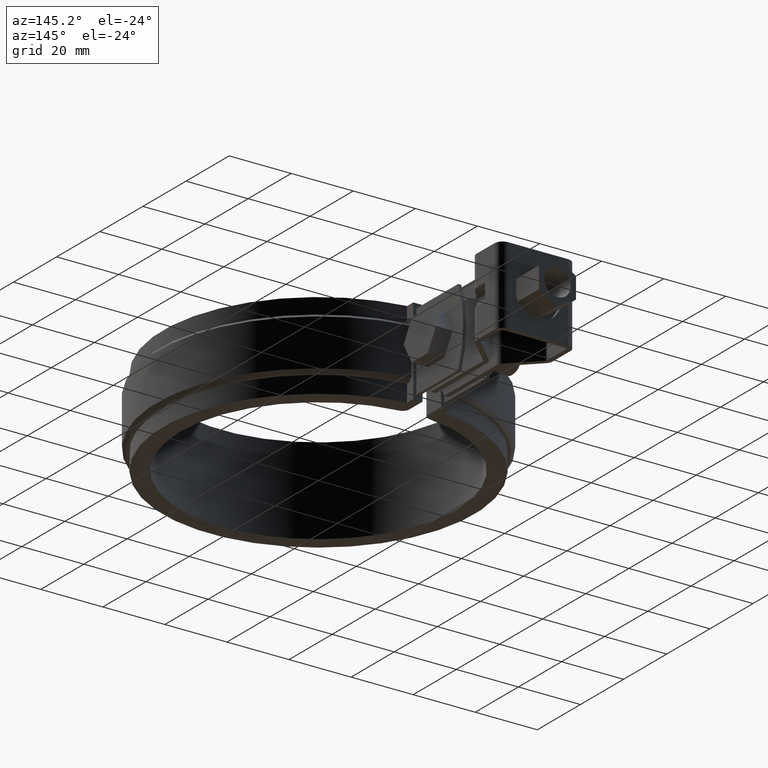
[diagram: clean part render]
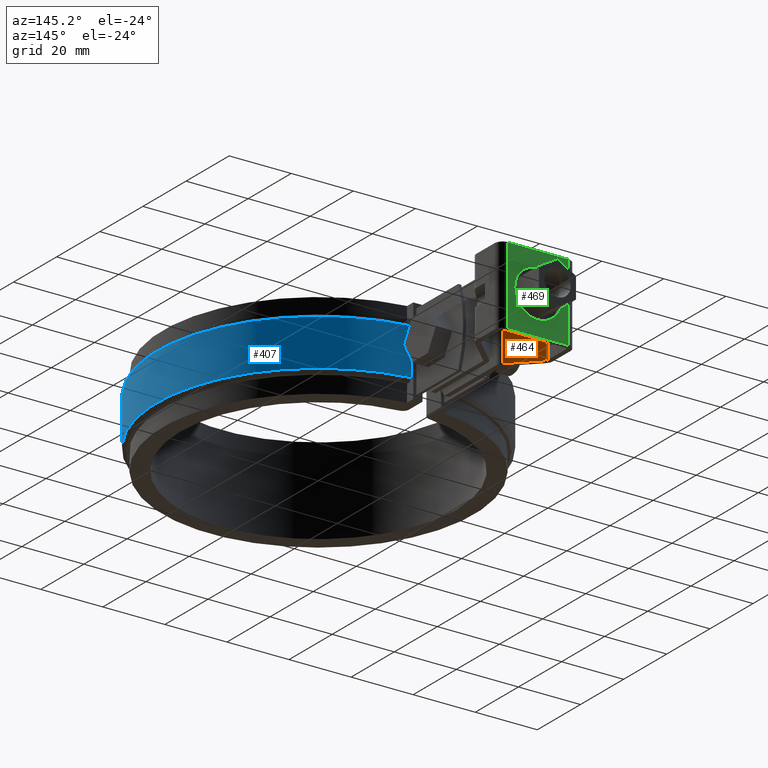
[diagram: same view with three faces highlighted in distinct colors, each labeled with its STEP entity id]
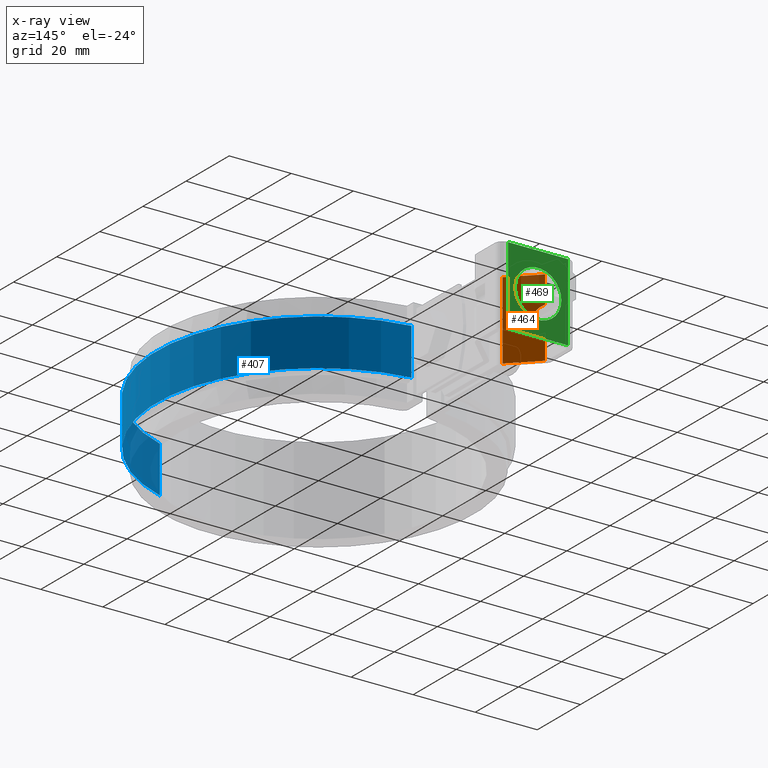
[diagram: x-ray of the same camera — body ghosted, the three highlighted faces saturated]
A machine part, auxiliary view with three faces highlighted in distinct colors.
The next image is the same camera in x-ray (body ghosted, the three faces saturated) — at least one of them is partly hidden behind the body in this view.
Their STEP definitions:

[orange] entity #464 — the highlighted planar face has unit normal (0.6983, 0.7158, -0).
#464 = ADVANCED_FACE( '', ( #841 ), #842, .T. );
#841 = FACE_OUTER_BOUND( '', #1857, .T. );
#842 = PLANE( '', #1858 );
#1857 = EDGE_LOOP( '', ( #3850, #3851, #3852, #3853, #3854, #3855 ) );
#1858 = AXIS2_PLACEMENT_3D( '', #3856, #3857, #3858 );
#3850 = ORIENTED_EDGE( '', *, *, #4674, .T. );
#3851 = ORIENTED_EDGE( '', *, *, #4749, .T. );
#3852 = ORIENTED_EDGE( '', *, *, #4783, .F. );
#3853 = ORIENTED_EDGE( '', *, *, #4780, .F. );
#3854 = ORIENTED_EDGE( '', *, *, #4763, .F. );
#3855 = ORIENTED_EDGE( '', *, *, #4784, .F. );
#3856 = CARTESIAN_POINT( '', ( -10.3483238356395, 90.1764119053686, 12.4999999939064 ) );
#3857 = DIRECTION( '', ( 0.698323835529679, 0.715781964519306, -3.34333070225550E-011 ) );
#3858 = DIRECTION( '', ( -0.715781964519306, 0.698323835529679, -3.32940420763790E-011 ) );
#4674 = EDGE_CURVE( '', #5480, #5478, #5481, .T. );
#4749 = EDGE_CURVE( '', #5478, #5609, #5612, .F. );
#4763 = EDGE_CURVE( '', #5634, #5625, #5636, .T. );
#4780 = EDGE_CURVE( '', #5625, #5663, #5664, .T. );
#4783 = EDGE_CURVE( '', #5663, #5609, #5668, .T. );
#4784 = EDGE_CURVE( '', #5480, #5634, #5669, .T. );
#5478 = VERTEX_POINT( '', #8319 );
#5480 = VERTEX_POINT( '', #8321 );
#5481 = LINE( '', #8322, #8323 );
#5609 = VERTEX_POINT( '', #8521 );
#5612 = LINE( '', #8524, #8525 );
#5625 = VERTEX_POINT( '', #8542 );
#5634 = VERTEX_POINT( '', #8558 );
#5636 = ELLIPSE( '', #8565, 5.93756228945901, 4.24999999999996 );
#5663 = VERTEX_POINT( '', #8616 );
#5664 = LINE( '', #8617, #8618 );
#5668 = LINE( '', #8623, #8624 );
#5669 = LINE( '', #8625, #8626 );
#8319 = CARTESIAN_POINT( '', ( -2.18435802772052, 82.2115675830508, 12.4999999942862 ) );
#8321 = CARTESIAN_POINT( '', ( -10.3483238356395, 90.1764119053686, 12.4999999939064 ) );
#8322 = CARTESIAN_POINT( '', ( -10.3483238356395, 90.1764119053686, 12.4999999939064 ) );
#8323 = VECTOR( '', #9381, 1000.00000000000 );
#8521 = CARTESIAN_POINT( '', ( -2.18435802770842, 82.2115675818713, -12.5000000057138 ) );
#8524 = CARTESIAN_POINT( '', ( -2.18435802772051, 82.2115675830508, 12.4999999942862 ) );
#8525 = VECTOR( '', #9504, 1000.00000000000 );
#8542 = CARTESIAN_POINT( '', ( -10.3483238356316, 90.1764119045996, -3.80080620550553 ) );
#8558 = CARTESIAN_POINT( '', ( -10.3483238356353, 90.1764119049582, 3.80080619331842 ) );
#8565 = AXIS2_PLACEMENT_3D( '', #9526, #9527, #9528 );
#8616 = CARTESIAN_POINT( '', ( -10.3483238356274, 90.1764119041891, -12.5000000060936 ) );
#8617 = CARTESIAN_POINT( '', ( -10.3483238356395, 90.1764119053686, 12.4999999939064 ) );
#8618 = VECTOR( '', #9555, 1000.00000000000 );
#8623 = CARTESIAN_POINT( '', ( -10.3483238356274, 90.1764119041891, -12.5000000060936 ) );
#8624 = VECTOR( '', #9560, 1000.00000000000 );
#8625 = CARTESIAN_POINT( '', ( -10.3483238356395, 90.1764119053686, 12.4999999939064 ) );
#8626 = VECTOR( '', #9561, 1000.00000000000 );
#9381 = DIRECTION( '', ( 0.715781964519306, -0.698323835529679, 3.32940420763790E-011 ) );
#9504 = DIRECTION( '', ( -4.83938419469381E-013, 4.71809216071525E-011, 1.00000000000000 ) );
#9526 = CARTESIAN_POINT( '', ( -12.2500000001050, 92.0317056379773, -6.18201323465684E-009 ) );
#9527 = DIRECTION( '', ( 0.698323835529679, 0.715781964519306, -3.34333070225550E-011 ) );
#9528 = DIRECTION( '', ( -0.715781964519306, 0.698323835529679, -3.32940420763790E-011 ) );
#9555 = DIRECTION( '', ( 4.83999649787072E-013, -4.71809813440451E-011, -1.00000000000000 ) );
#9560 = DIRECTION( '', ( 0.715781964519306, -0.698323835529679, 3.32940420763790E-011 ) );
#9561 = DIRECTION( '', ( 4.83999649787072E-013, -4.71809813440451E-011, -1.00000000000000 ) );

[blue] entity #407 — the highlighted cylindrical surface (partial cylindrical patch) has radius 52.05 mm, axis along (0, 0, -1).
#407 = ADVANCED_FACE( '', ( #722 ), #723, .T. );
#722 = FACE_OUTER_BOUND( '', #1734, .T. );
#723 = CYLINDRICAL_SURFACE( '', #1735, 52.0500000000000 );
#1734 = EDGE_LOOP( '', ( #3345, #3346, #3347, #3348 ) );
#1735 = AXIS2_PLACEMENT_3D( '', #3349, #3350, #3351 );
#3345 = ORIENTED_EDGE( '', *, *, #4618, .F. );
#3346 = ORIENTED_EDGE( '', *, *, #4575, .T. );
#3347 = ORIENTED_EDGE( '', *, *, #4647, .F. );
#3348 = ORIENTED_EDGE( '', *, *, #4652, .T. );
#3349 = CARTESIAN_POINT( '', ( 0.000000000000000, -1.38777878078145E-014, -8.50000000000000 ) );
#3350 = DIRECTION( '', ( 0.000000000000000, 0.000000000000000, -1.00000000000000 ) );
#3351 = DIRECTION( '', ( 0.0960614793467818, 0.995375402642494, 0.000000000000000 ) );
#4575 = EDGE_CURVE( '', #5322, #5326, #5328, .F. );
#4618 = EDGE_CURVE( '', #5322, #5402, #5403, .F. );
#4647 = EDGE_CURVE( '', #5447, #5326, #5448, .T. );
#4652 = EDGE_CURVE( '', #5447, #5402, #5454, .T. );
#5322 = VERTEX_POINT( '', #8084 );
#5326 = VERTEX_POINT( '', #8091 );
#5328 = CIRCLE( '', #8094, 52.0500000000000 );
#5402 = VERTEX_POINT( '', #8197 );
#5403 = LINE( '', #8198, #8199 );
#5447 = VERTEX_POINT( '', #8267 );
#5448 = LINE( '', #8268, #8269 );
#5454 = CIRCLE( '', #8276, 52.0500000000000 );
#8084 = CARTESIAN_POINT( '', ( 6.00000000000000, 51.7030221553828, 7.50000000000001 ) );
#8091 = CARTESIAN_POINT( '', ( 16.8700026854753, -49.2402834008097, 7.50000000000001 ) );
#8094 = AXIS2_PLACEMENT_3D( '', #9225, #9226, #9227 );
#8197 = CARTESIAN_POINT( '', ( 6.00000000000000, 51.7030221553828, -7.50000000000000 ) );
#8198 = CARTESIAN_POINT( '', ( 6.00000000000000, 51.7030221553828, -8.50000000000000 ) );
#8199 = VECTOR( '', #9296, 1000.00000000000 );
#8267 = CARTESIAN_POINT( '', ( 16.8700026854753, -49.2402834008097, -7.50000000000000 ) );
#8268 = CARTESIAN_POINT( '', ( 16.8700026854753, -49.2402834008097, -8.50000000000000 ) );
#8269 = VECTOR( '', #9342, 1000.00000000000 );
#8276 = AXIS2_PLACEMENT_3D( '', #9353, #9354, #9355 );
#9225 = CARTESIAN_POINT( '', ( 0.000000000000000, -1.38777878078145E-014, 7.50000000000000 ) );
#9226 = DIRECTION( '', ( 0.000000000000000, 0.000000000000000, 1.00000000000000 ) );
#9227 = DIRECTION( '', ( 1.00000000000000, 0.000000000000000, 0.000000000000000 ) );
#9296 = DIRECTION( '', ( 0.000000000000000, 0.000000000000000, 1.00000000000000 ) );
#9342 = DIRECTION( '', ( 0.000000000000000, 0.000000000000000, 1.00000000000000 ) );
#9353 = CARTESIAN_POINT( '', ( 0.000000000000000, -1.38777878078145E-014, -7.50000000000000 ) );
#9354 = DIRECTION( '', ( 0.000000000000000, 0.000000000000000, 1.00000000000000 ) );
#9355 = DIRECTION( '', ( 1.00000000000000, 0.000000000000000, 0.000000000000000 ) );

[green] entity #469 — the highlighted planar face has unit normal (-0, 1, -0).
#469 = ADVANCED_FACE( '', ( #852, #853 ), #854, .T. );
#852 = FACE_BOUND( '', #1868, .T. );
#853 = FACE_OUTER_BOUND( '', #1869, .T. );
#854 = PLANE( '', #1870 );
#1868 = EDGE_LOOP( '', ( #3894 ) );
#1869 = EDGE_LOOP( '', ( #3895, #3896, #3897, #3898 ) );
#1870 = AXIS2_PLACEMENT_3D( '', #3899, #3900, #3901 );
#3894 = ORIENTED_EDGE( '', *, *, #4779, .F. );
#3895 = ORIENTED_EDGE( '', *, *, #4692, .T. );
#3896 = ORIENTED_EDGE( '', *, *, #4744, .T. );
#3897 = ORIENTED_EDGE( '', *, *, #4791, .F. );
#3898 = ORIENTED_EDGE( '', *, *, #4702, .F. );
#3899 = CARTESIAN_POINT( '', ( -9.65000000012229, 101.796388100998, 12.4999999933585 ) );
#3900 = DIRECTION( '', ( -1.14762481997310E-012, 1.00000000000000, -4.71809813440456E-011 ) );
#3901 = DIRECTION( '', ( -1.00000000000000, -1.14762481999594E-012, -4.83999649732926E-013 ) );
#4692 = EDGE_CURVE( '', #5516, #5514, #5517, .T. );
#4702 = EDGE_CURVE( '', #5516, #5532, #5535, .T. );
#4744 = EDGE_CURVE( '', #5514, #5601, #5603, .T. );
#4779 = EDGE_CURVE( '', #5661, #5661, #5662, .T. );
#4791 = EDGE_CURVE( '', #5532, #5601, #5678, .T. );
#5514 = VERTEX_POINT( '', #8365 );
#5516 = VERTEX_POINT( '', #8367 );
#5517 = LINE( '', #8368, #8369 );
#5532 = VERTEX_POINT( '', #8388 );
#5535 = LINE( '', #8392, #8393 );
#5601 = VERTEX_POINT( '', #8510 );
#5603 = LINE( '', #8512, #8513 );
#5661 = VERTEX_POINT( '', #8614 );
#5662 = CIRCLE( '', #8615, 7.50000000000000 );
#5678 = LINE( '', #8640, #8641 );
#8365 = CARTESIAN_POINT( '', ( 9.64999999987770, 101.796388101020, 12.4999999933679 ) );
#8367 = CARTESIAN_POINT( '', ( -9.65000000012229, 101.796388100998, 12.4999999933585 ) );
#8368 = CARTESIAN_POINT( '', ( -9.65000000012229, 101.796388100998, 12.4999999933585 ) );
#8369 = VECTOR( '', #9415, 1000.00000000000 );
#8388 = CARTESIAN_POINT( '', ( -9.65000000011019, 101.796388099818, -12.5000000066415 ) );
#8392 = CARTESIAN_POINT( '', ( -9.65000000012229, 101.796388100998, 12.4999999933585 ) );
#8393 = VECTOR( '', #9433, 1000.00000000000 );
#8510 = CARTESIAN_POINT( '', ( 9.64999999988980, 101.796388099841, -12.5000000066321 ) );
#8512 = CARTESIAN_POINT( '', ( 9.64999999987770, 101.796388101020, 12.4999999933679 ) );
#8513 = VECTOR( '', #9495, 1000.00000000000 );
#8614 = CARTESIAN_POINT( '', ( 7.49999999988376, 101.796398100428, -6.63317268076111E-009 ) );
#8615 = AXIS2_PLACEMENT_3D( '', #9552, #9553, #9554 );
#8640 = CARTESIAN_POINT( '', ( -9.65000000011019, 101.796388099818, -12.5000000066415 ) );
#8641 = VECTOR( '', #9570, 1000.00000000000 );
#9415 = DIRECTION( '', ( 1.00000000000000, 1.14762481999594E-012, 4.83999649732926E-013 ) );
#9433 = DIRECTION( '', ( 4.83999649787072E-013, -4.71809813440451E-011, -1.00000000000000 ) );
#9495 = DIRECTION( '', ( 4.83999649787072E-013, -4.71809813440451E-011, -1.00000000000000 ) );
#9552 = CARTESIAN_POINT( '', ( -1.16235786493719E-010, 101.796398100419, -6.63680221890672E-009 ) );
#9553 = DIRECTION( '', ( -1.14762481997310E-012, 1.00000000000000, -4.71809813440456E-011 ) );
#9554 = DIRECTION( '', ( 1.00000000000000, 1.14762481999593E-012, 4.83938419415235E-013 ) );
#9570 = DIRECTION( '', ( 1.00000000000000, 1.14762481999594E-012, 4.83999649732926E-013 ) );